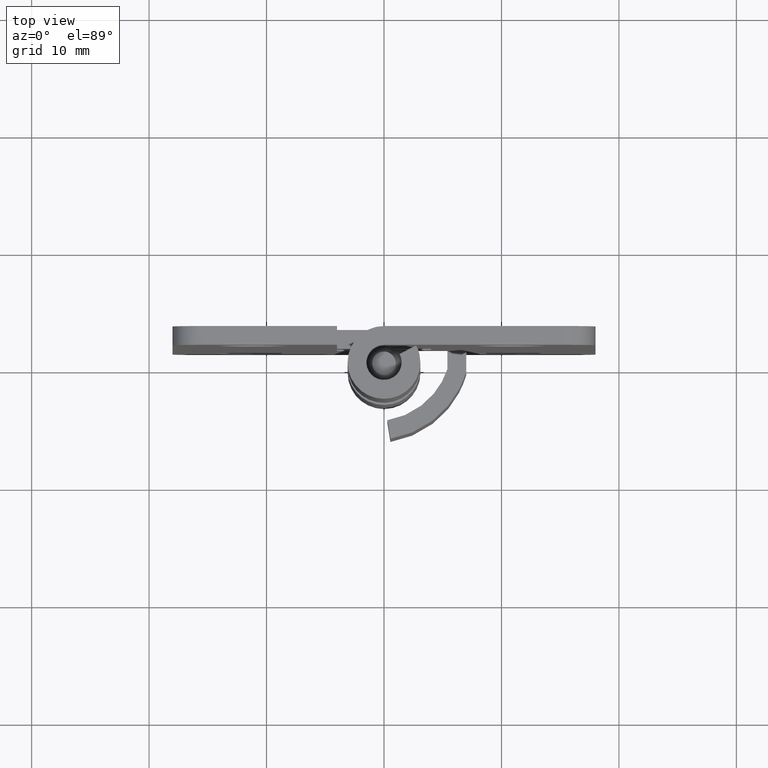
[diagram: clean part render]
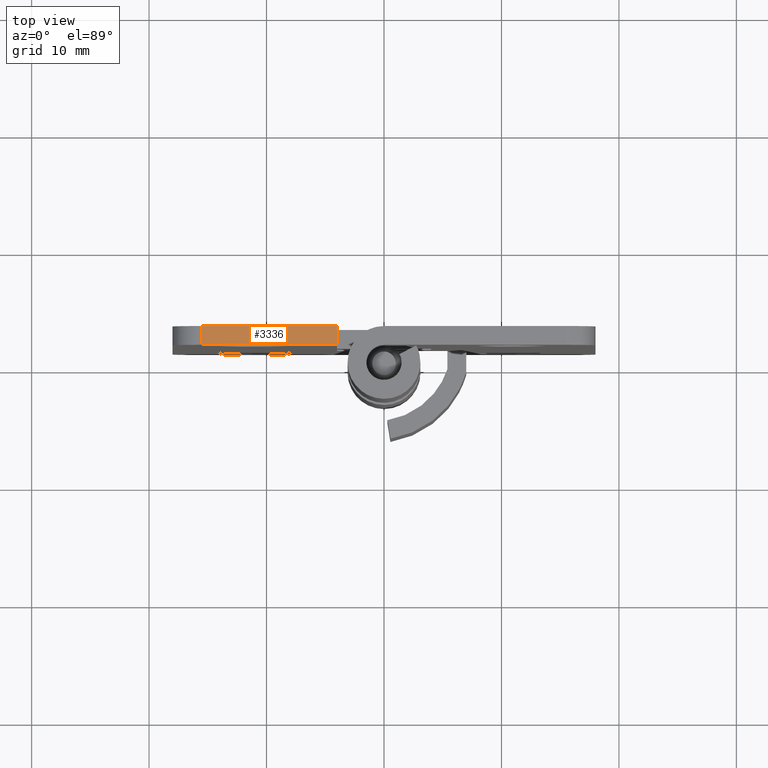
[diagram: same view with one face highlighted and labeled with its STEP entity id]
A machine part, top view. The second image highlights one B-rep face of the part: STEP entity #3336.
In plain terms, the highlighted face is a freeform B-spline surface patch.
Its self-contained STEP definition (entity closure, byte-faithful):
#3111=CARTESIAN_POINT('',(-15.500000000000000,1.500000000000000,50.0));
#3112=VERTEX_POINT('',#3111);
#3128=CARTESIAN_POINT('',(-15.500000000000000,3.100002000000000,50.0));
#3129=VERTEX_POINT('',#3128);
#3130=CARTESIAN_POINT('',(-15.500000000000000,3.100002000000000,50.0));
#3131=CARTESIAN_POINT('',(-15.500000000000000,1.500000000000000,50.0));
#3132=QUASI_UNIFORM_CURVE('',1,(#3130,#3131),.UNSPECIFIED.,.F.,.U.);
#3133=EDGE_CURVE('',#3129,#3112,#3132,.T.);
#3309=CARTESIAN_POINT('',(-16.074424977710770,1.420079903201058,50.0));
#3310=CARTESIAN_POINT('',(-3.425574713835195,1.420079903201058,50.0));
#3311=CARTESIAN_POINT('',(-16.074424977710770,3.179922139714286,50.0));
#3312=CARTESIAN_POINT('',(-3.425574713835195,3.179922139714286,50.0));
#3313=B_SPLINE_SURFACE_WITH_KNOTS('',1,1,((#3309,#3311),(#3310,#3312)),.UNSPECIFIED.,.F.,.F.,.U.,(2,2),(2,2),(0.0,12.648850263875580),(0.041708334948495,0.958291687403247),.UNSPECIFIED.);
#3314=CARTESIAN_POINT('',(-4.0,1.499999999999946,50.0));
#3315=VERTEX_POINT('',#3314);
#3316=CARTESIAN_POINT('',(-4.0,3.100002000000000,50.0));
#3317=VERTEX_POINT('',#3316);
#3318=CARTESIAN_POINT('',(-4.0,1.499999999999946,50.0));
#3319=CARTESIAN_POINT('',(-4.0,3.100002000000000,50.0));
#3320=QUASI_UNIFORM_CURVE('',1,(#3318,#3319),.UNSPECIFIED.,.F.,.U.);
#3321=EDGE_CURVE('',#3315,#3317,#3320,.T.);
#3322=ORIENTED_EDGE('',*,*,#3321,.T.);
#3323=CARTESIAN_POINT('',(-15.500000000000000,3.100002000000000,50.0));
#3324=CARTESIAN_POINT('',(-4.0,3.100002000000000,50.0));
#3325=QUASI_UNIFORM_CURVE('',1,(#3323,#3324),.UNSPECIFIED.,.F.,.U.);
#3326=EDGE_CURVE('',#3129,#3317,#3325,.T.);
#3327=ORIENTED_EDGE('',*,*,#3326,.F.);
#3328=ORIENTED_EDGE('',*,*,#3133,.T.);
#3329=CARTESIAN_POINT('',(-4.0,1.499999999999946,50.0));
#3330=CARTESIAN_POINT('',(-15.500000000000000,1.500000000000000,50.0));
#3331=QUASI_UNIFORM_CURVE('',1,(#3329,#3330),.UNSPECIFIED.,.F.,.U.);
#3332=EDGE_CURVE('',#3315,#3112,#3331,.T.);
#3333=ORIENTED_EDGE('',*,*,#3332,.F.);
#3334=EDGE_LOOP('',(#3322,#3327,#3328,#3333));
#3335=FACE_OUTER_BOUND('',#3334,.T.);
#3336=ADVANCED_FACE('',(#3335),#3313,.T.);